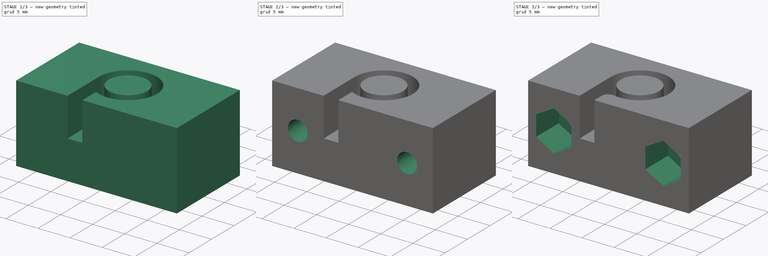
[diagram: build sequence overview — one tinted view per stage of 3, left to right]
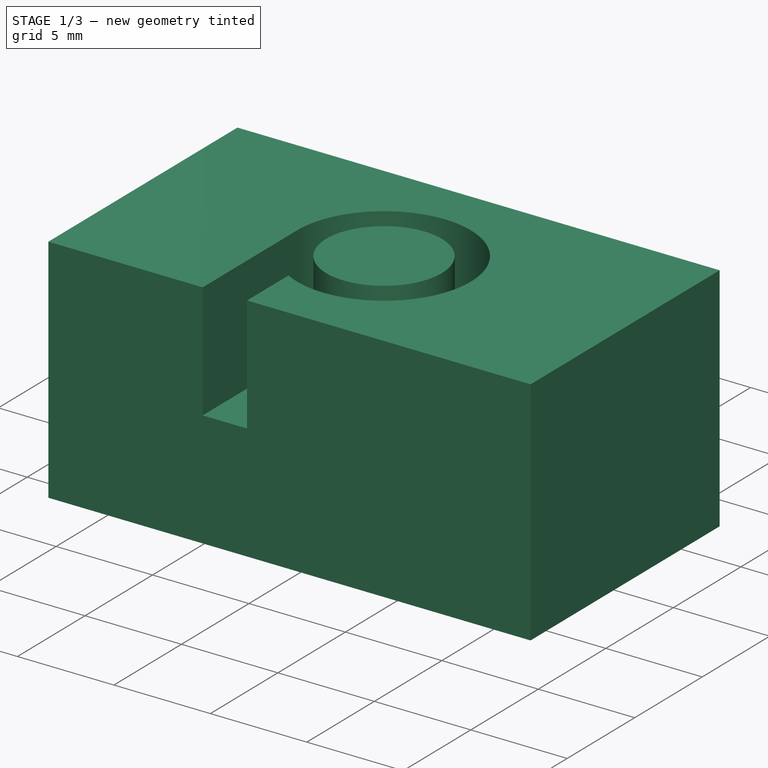
[diagram: stage 1 of 3 — iso view after this stage's code; geometry added in this stage tinted green]
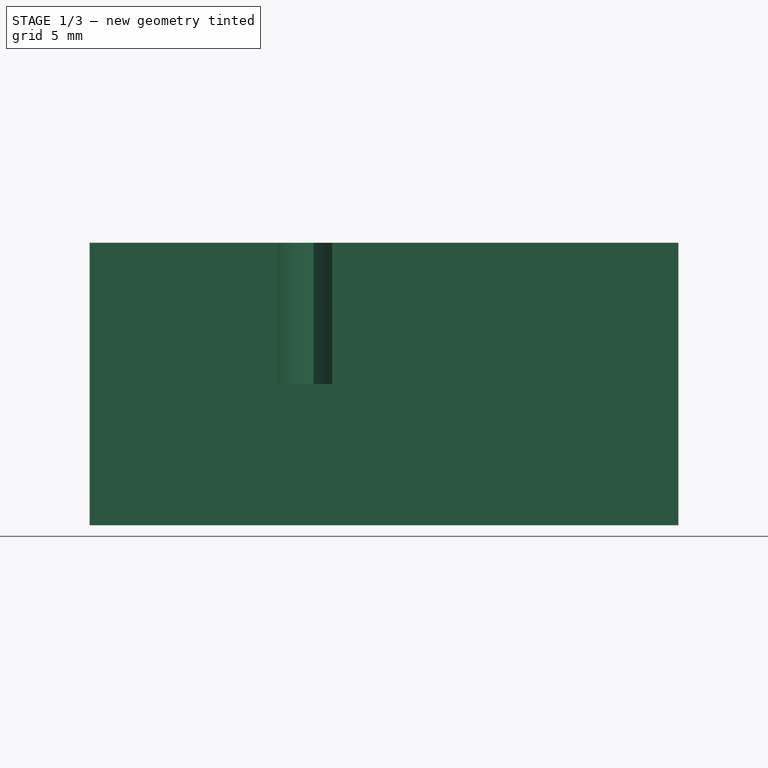
[diagram: stage 1 of 3 — front view after this stage's code; geometry added in this stage tinted green]
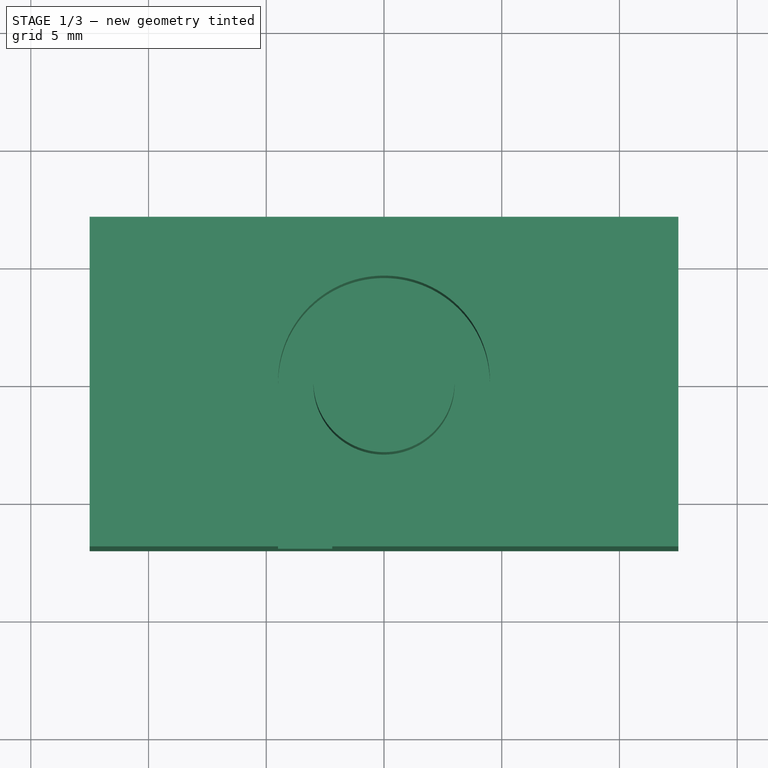
[diagram: stage 1 of 3 — top view after this stage's code; geometry added in this stage tinted green]
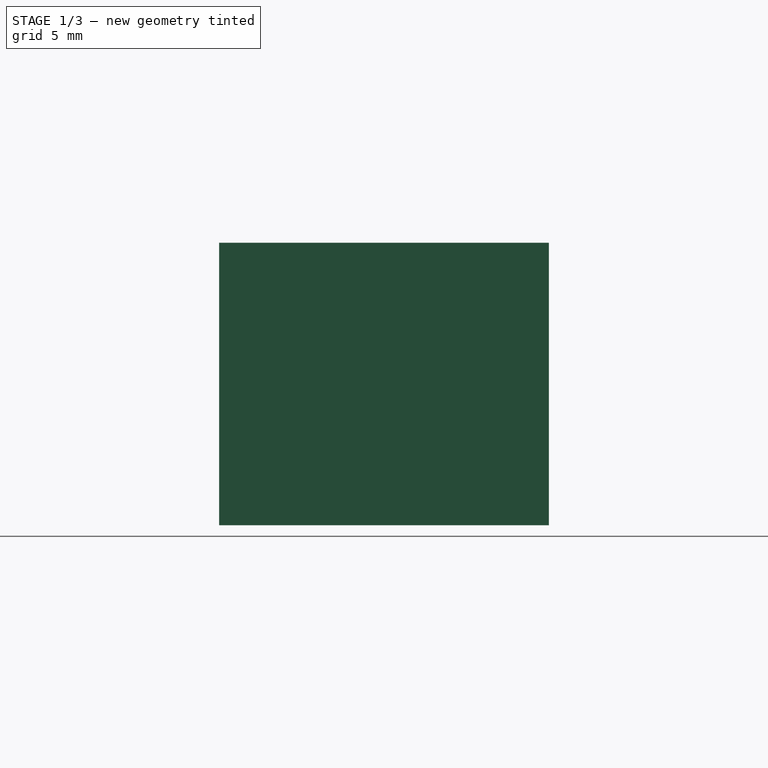
[diagram: stage 1 of 3 — right view after this stage's code; geometry added in this stage tinted green]
FCSTD DOCUMENT  (FreeCAD 0.16R6705 (Git))
Label: z-belt-clamp_left
License: All rights reserved
LicenseURL: http://de.wikipedia.org/wiki/Alle_Rechte_vorbehalten
objects: Sketcher::SketchObject×4, PartDesign::Pocket×3, PartDesign::Pad×1, PartDesign::Fillet×1
note: 13 computed .brp shape members not serialized (recipe doc carries the construction recipe); baked Part::Feature solids carry a one-line shape summary decoded from their .brp

FEATURE [Sketcher::SketchObject] Sketch
  sketch-geometry (4):
    g0: LineSegment StartX=-12.5 StartY=7 StartZ=0 EndX=12.5 EndY=7 EndZ=0
    g1: LineSegment StartX=12.5 StartY=7 StartZ=0 EndX=12.5 EndY=-7 EndZ=0
    g2: LineSegment StartX=12.5 StartY=-7 StartZ=0 EndX=-12.5 EndY=-7 EndZ=0
    g3: LineSegment StartX=-12.5 StartY=-7 StartZ=0 EndX=-12.5 EndY=7 EndZ=0
  constraints (12):
    c: Coincident(g0,g1)
    c: Coincident(g1,g2)
    c: Coincident(g2,g3)
    c: Coincident(g3,g0)
    c: Horizontal(g0)
    c: Horizontal(g2)
    c: Vertical(g1)
    c: Vertical(g3)
    c: Symmetric(g0,g0,g-2)
    c: Symmetric(g2,g0,g-1)
    c: DistanceX(g0,g0) = 25
    c: DistanceY(g1,g1) = 14
FEATURE [PartDesign::Pad] Pad
  Length = 12
  Length2 = 100
  Midplane = true
  Sketch = -> Sketch
  Type = 0
FEATURE [Sketcher::SketchObject] Sketch001
  ExternalGeometry = -> [Pad]
  Placement = pos=(0,0,6) rot=(0,0,1;0rad)
  Support = -> Pad [Face6]
  sketch-geometry (5):
    g0: Circle CenterX=0 CenterY=0 CenterZ=0 NormalX=0 NormalY=0 NormalZ=1 Radius=3
    g1: ArcOfCircle CenterX=0 CenterY=0 CenterZ=0 NormalX=0 NormalY=0 NormalZ=1 Radius=4.5 StartAngle=4.20157 EndAngle=9.42478
    g2: LineSegment StartX=-4.5 StartY=0 StartZ=0 EndX=-4.5 EndY=-7 EndZ=0
    g3: LineSegment StartX=-4.5 StartY=-7 StartZ=0 EndX=-2.2 EndY=-7 EndZ=0
    g4: LineSegment StartX=-2.2 StartY=-7 StartZ=0 EndX=-2.2 EndY=-3.92556 EndZ=0
  constraints (14):
    c: Coincident(g0,g-1)
    c: Radius(g0) = 3
    c: Coincident(g-1,g1)
    c: Radius(g1) = 4.5
    c: Coincident(g3,g4)
    c: Coincident(g4,g1)
    c: Vertical(g4)
    c: DistanceX(g3,g3) = 2.3
    c: Vertical(g2)
    c: Coincident(g2,g1)
    c: Coincident(g3,g2)
    c: PointOnObject(g1,g-1)
    c: Horizontal(g3)
    c: PointOnObject(g3,g-3)
FEATURE [PartDesign::Pocket] Pocket
  Length = 6
  Sketch = -> Sketch001
  Type = 0
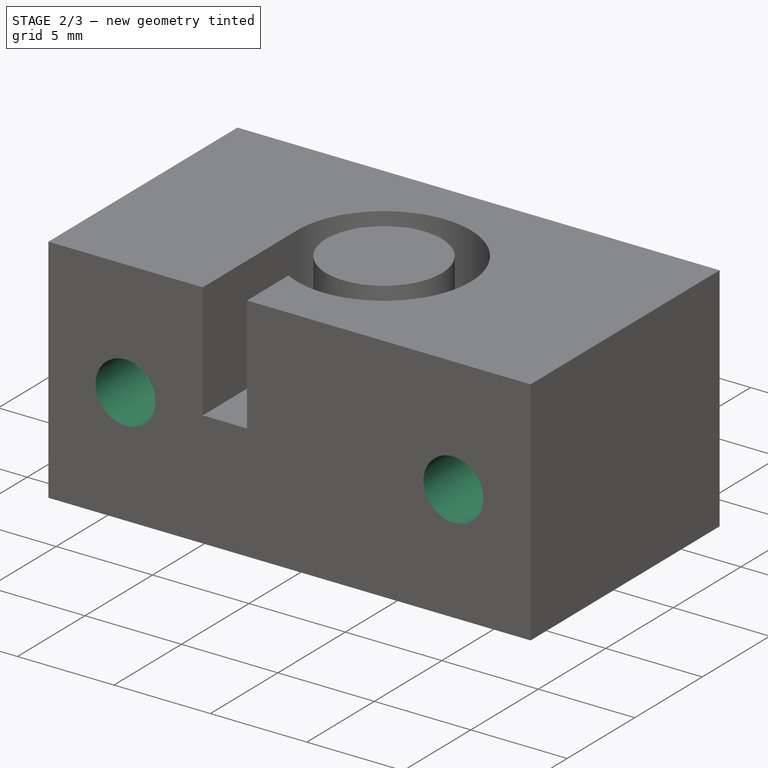
[diagram: stage 2 of 3 — iso view after this stage's code; geometry added in this stage tinted green]
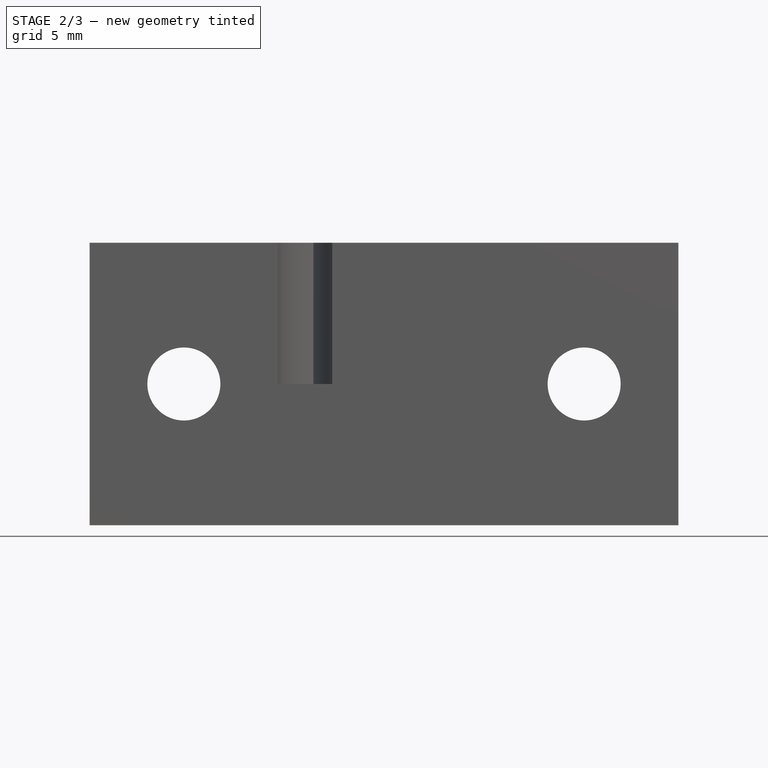
[diagram: stage 2 of 3 — front view after this stage's code; geometry added in this stage tinted green]
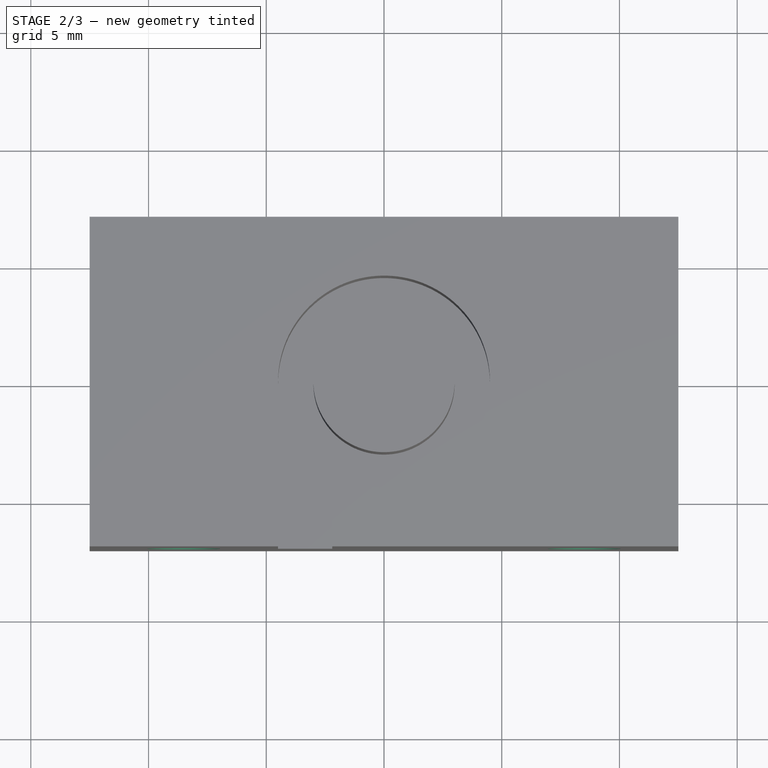
[diagram: stage 2 of 3 — top view after this stage's code; geometry added in this stage tinted green]
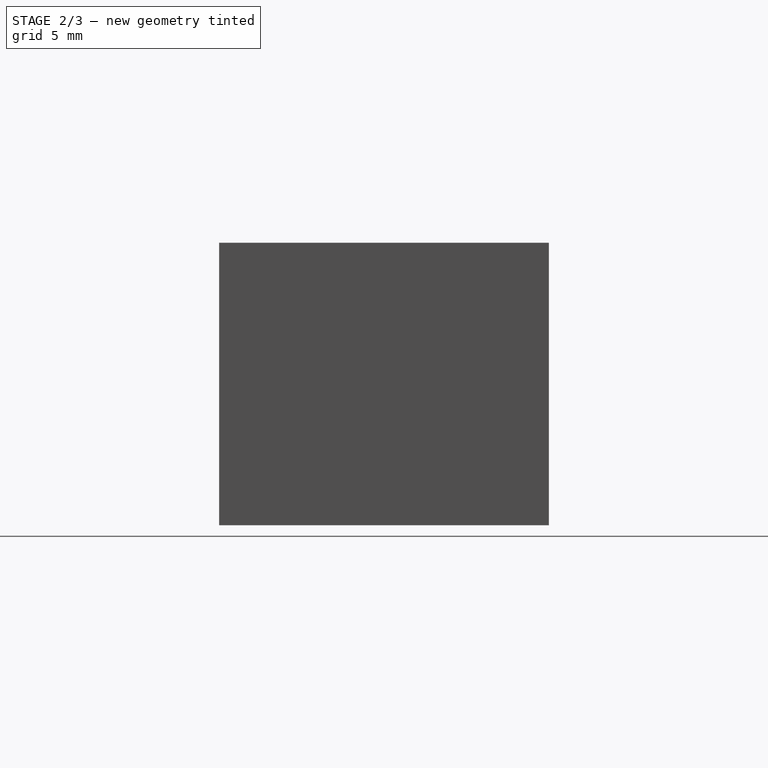
[diagram: stage 2 of 3 — right view after this stage's code; geometry added in this stage tinted green]
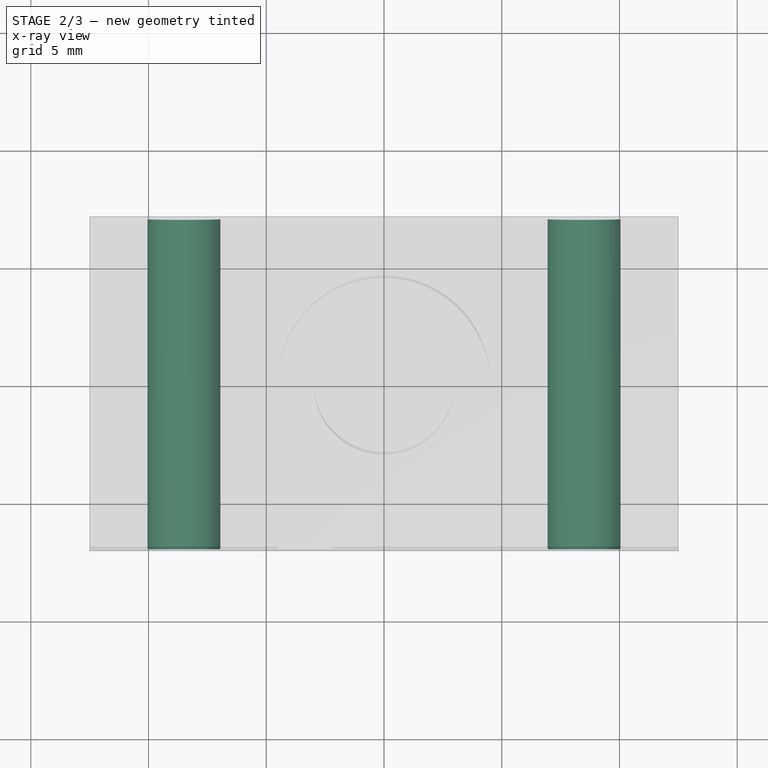
[diagram: stage 2 of 3 — x-ray composite at the top view; earlier geometry ghosted, this stage's added geometry solid]
FEATURE [Sketcher::SketchObject] Sketch002
  ExternalGeometry = -> [Pocket]
  Placement = pos=(0,7,0) rot=(0,0.707107,0.707107;3.14159rad)
  Support = -> Pocket [Face1]
  sketch-geometry (2):
    g0: Circle CenterX=-8.5 CenterY=0 CenterZ=0 NormalX=0 NormalY=0 NormalZ=1 Radius=1.55
    g1: Circle CenterX=8.5 CenterY=0 CenterZ=0 NormalX=0 NormalY=0 NormalZ=1 Radius=1.55
  constraints (5):
    c: Equal(g0,g1)
    c: Radius(g0) = 1.55
    c: Symmetric(g0,g1,g-2)
    c: PointOnObject(g1,g-1)
    c: DistanceX(g-4,g0) = 4
FEATURE [PartDesign::Pocket] Pocket001
  Length = 15
  Sketch = -> Sketch002
  Type = 0
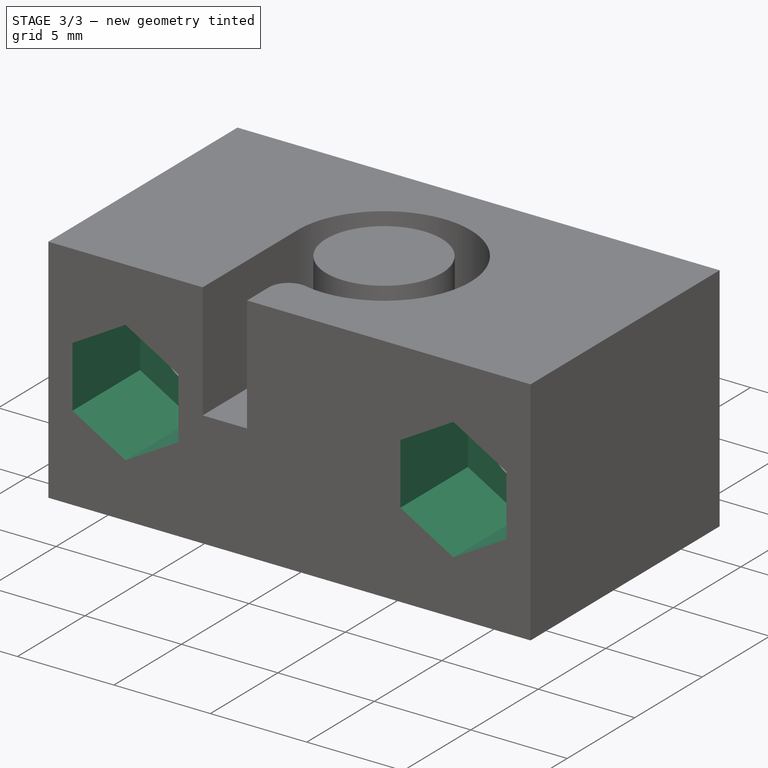
[diagram: stage 3 of 3 — iso view after this stage's code; geometry added in this stage tinted green]
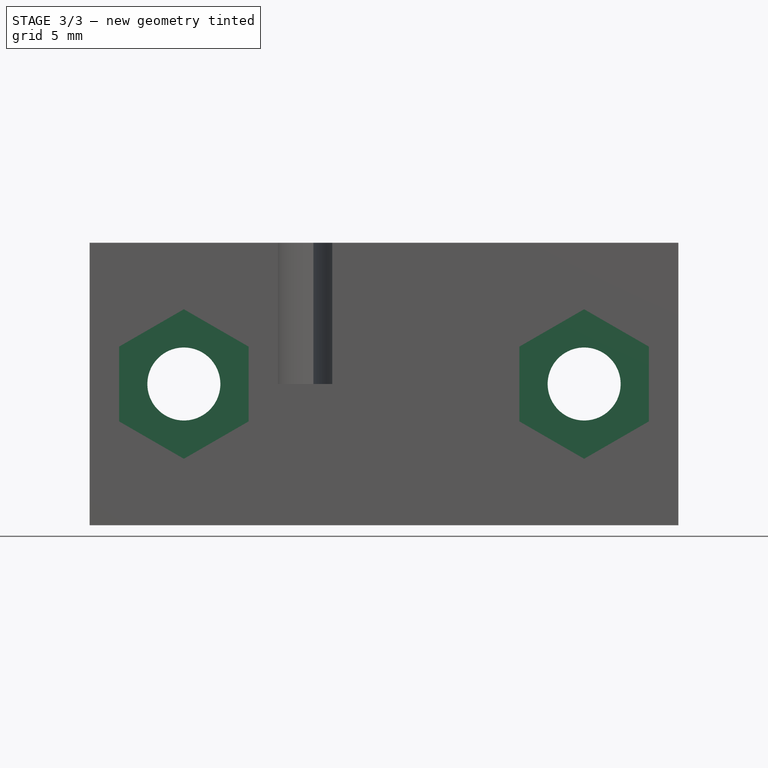
[diagram: stage 3 of 3 — front view after this stage's code; geometry added in this stage tinted green]
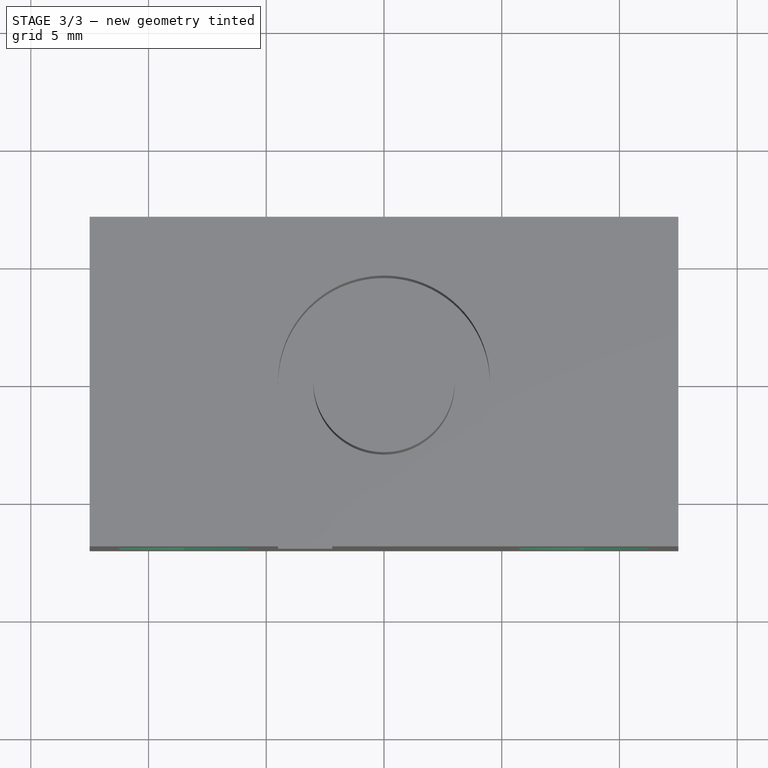
[diagram: stage 3 of 3 — top view after this stage's code; geometry added in this stage tinted green]
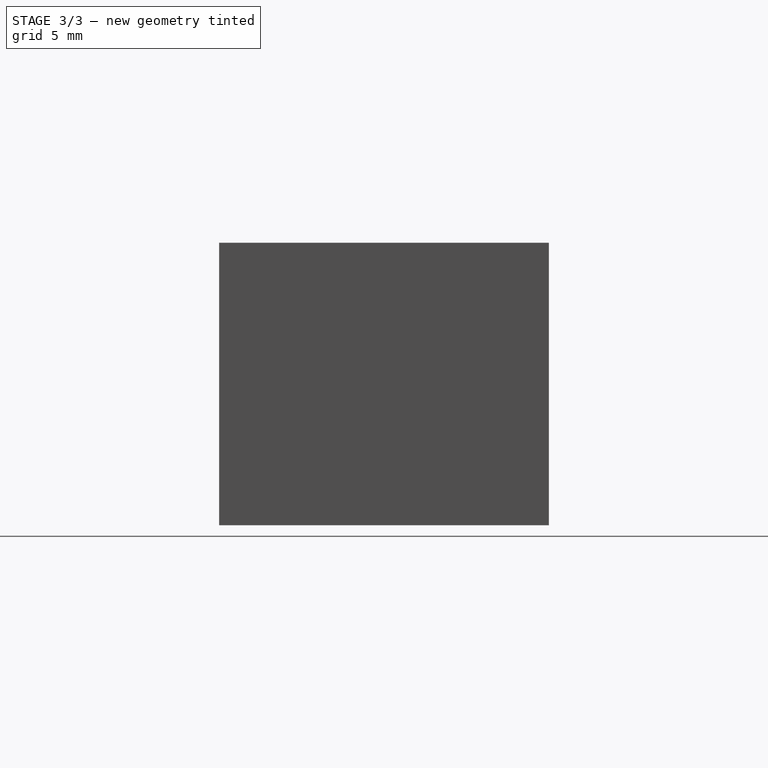
[diagram: stage 3 of 3 — right view after this stage's code; geometry added in this stage tinted green]
FEATURE [Sketcher::SketchObject] Sketch003
  ExternalGeometry = -> [Pocket001]
  Placement = pos=(0,-7,0) rot=(1,0,0;1.5708rad)
  Support = -> Pocket001 [Face8]
  sketch-geometry (14):
    g0: LineSegment StartX=-5.75 StartY=-1.58771 StartZ=0 EndX=-5.75 EndY=1.58771 EndZ=0
    g1: LineSegment StartX=-5.75 StartY=1.58771 StartZ=0 EndX=-8.5 EndY=3.17543 EndZ=0
    g2: LineSegment StartX=-8.5 StartY=3.17543 StartZ=0 EndX=-11.25 EndY=1.58771 EndZ=0
    g3: LineSegment StartX=-11.25 StartY=1.58771 StartZ=0 EndX=-11.25 EndY=-1.58771 EndZ=0
    g4: LineSegment StartX=-11.25 StartY=-1.58771 StartZ=0 EndX=-8.5 EndY=-3.17543 EndZ=0
    g5: LineSegment StartX=-8.5 StartY=-3.17543 StartZ=0 EndX=-5.75 EndY=-1.58771 EndZ=0
    g6: Circle [constr] CenterX=-8.5 CenterY=0 CenterZ=0 NormalX=0 NormalY=0 NormalZ=1 Radius=3.17543
    g7: LineSegment StartX=5.75 StartY=-1.58771 StartZ=0 EndX=8.5 EndY=-3.17543 EndZ=0
    g8: LineSegment StartX=8.5 StartY=-3.17543 StartZ=0 EndX=11.25 EndY=-1.58771 EndZ=0
    g9: LineSegment StartX=11.25 StartY=-1.58771 StartZ=0 EndX=11.25 EndY=1.58771 EndZ=0
    g10: LineSegment StartX=11.25 StartY=1.58771 StartZ=0 EndX=8.5 EndY=3.17543 EndZ=0
    g11: LineSegment StartX=8.5 StartY=3.17543 StartZ=0 EndX=5.75 EndY=1.58771 EndZ=0
    g12: LineSegment StartX=5.75 StartY=1.58771 StartZ=0 EndX=5.75 EndY=-1.58771 EndZ=0
    g13: Circle [constr] CenterX=8.5 CenterY=0 CenterZ=0 NormalX=0 NormalY=0 NormalZ=1 Radius=3.17543
  constraints (32):
    c: Coincident(g0,g1)
    c: Coincident(g1,g2)
    c: Coincident(g2,g3)
    c: Coincident(g3,g4)
    c: Coincident(g4,g5)
    c: Coincident(g5,g0)
    c: Equal(g0, g1-g5) x5
    c: PointOnObject(g0,g6)
    c: PointOnObject(g1,g6)
    c: PointOnObject(g2,g6)
    c: PointOnObject(g3,g6)
    c: PointOnObject(g4,g6)
    c: PointOnObject(g5,g6)
    c: Coincident(g6,g-4)
    c: Coincident(g7,g8)
    c: Coincident(g8,g9)
    c: Coincident(g9,g10)
    c: Coincident(g10,g11)
    c: Coincident(g11,g12)
    c: Coincident(g12,g7)
    c: Equal(g7, g8-g12) x5
    c: PointOnObject(g7,g13)
    c: PointOnObject(g8,g13)
    c: PointOnObject(g9,g13)
    c: PointOnObject(g10,g13)
    c: PointOnObject(g11,g13)
    c: PointOnObject(g12,g13)
    c: Coincident(g13,g-3)
    c: Distance(g4,g0) = 5.5
    c: Equal(g6,g13)
    c: Vertical(g3)
    c: Vertical(g9)
FEATURE [PartDesign::Pocket] Pocket002
  Length = 5
  Sketch = -> Sketch003
  Type = 0
FEATURE [PartDesign::Fillet] Fillet
  Base = -> Pocket002 [Edge39]
  Radius = 1
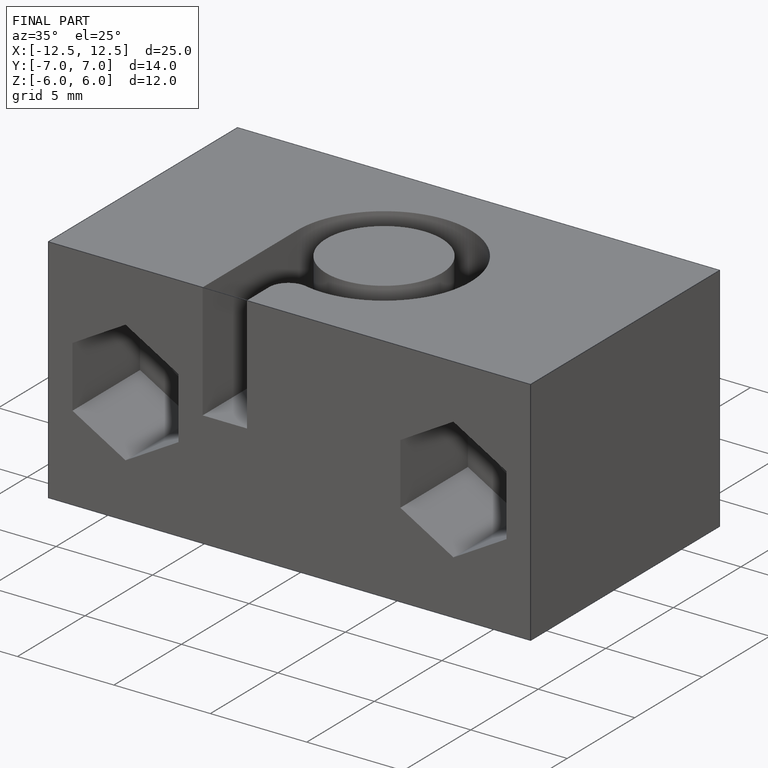
[diagram: finished part — iso view with bounding-box wireframe]
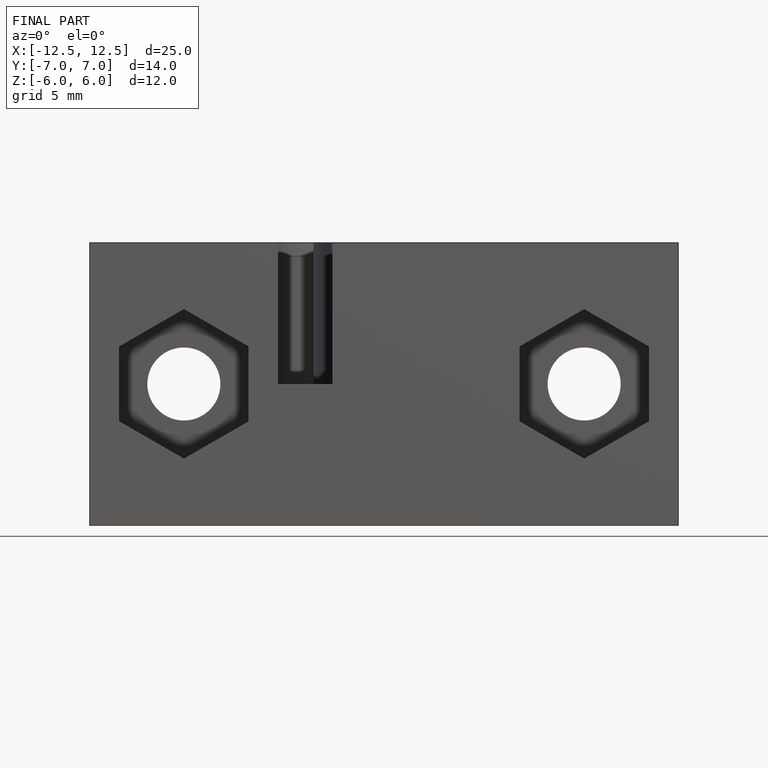
[diagram: finished part — front view with bounding-box wireframe]
